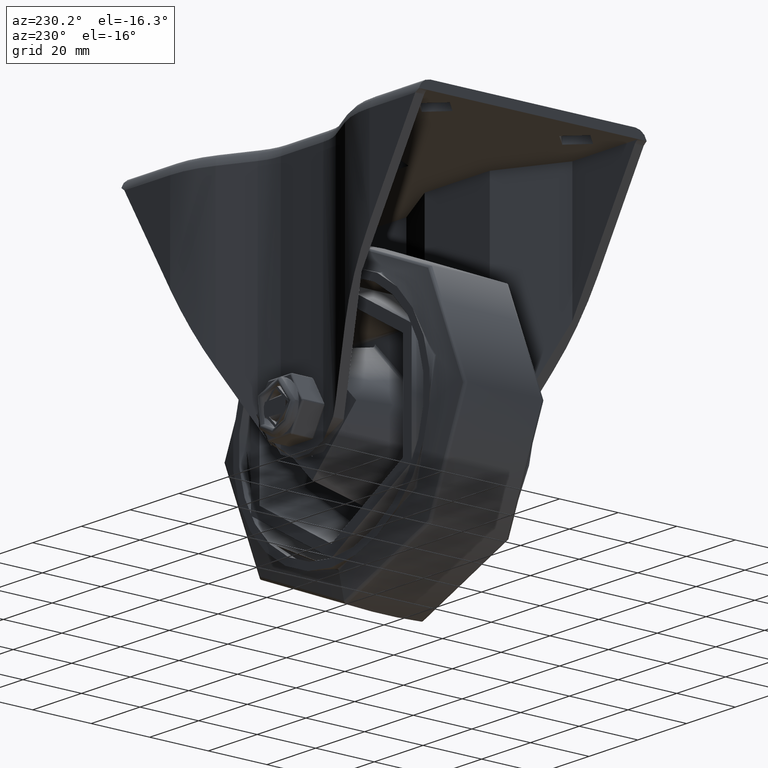
[diagram: clean part render]
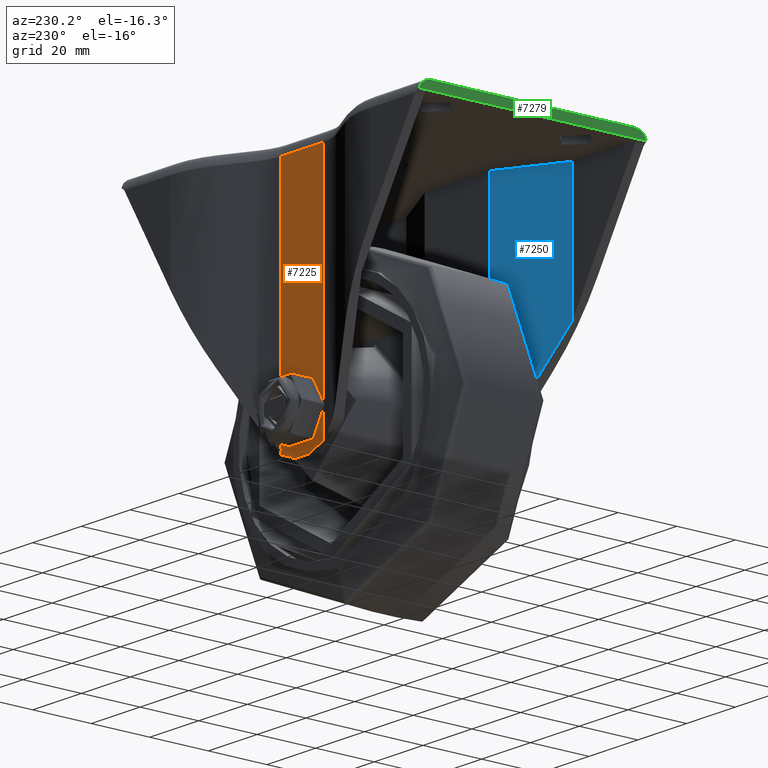
[diagram: same view with three faces highlighted in distinct colors, each labeled with its STEP entity id]
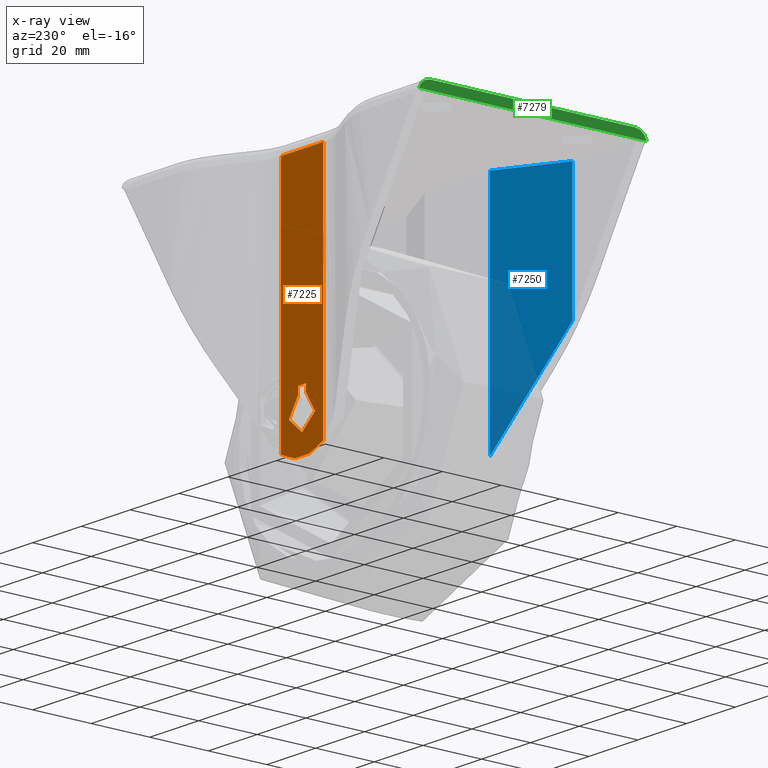
[diagram: x-ray of the same camera — body ghosted, the three highlighted faces saturated]
A machine part, auxiliary view with three faces highlighted in distinct colors.
The next image is the same camera in x-ray (body ghosted, the three faces saturated) — at least one of them is partly hidden behind the body in this view.
Their STEP definitions:

[orange] entity #7225 — the highlighted planar face has unit normal (0, -1, 0).
#697=FACE_BOUND('',#1472,.T.);
#742=CIRCLE('',#7757,5.4);
#750=CIRCLE('',#7776,16.);
#1037=FACE_OUTER_BOUND('',#1471,.T.);
#1471=EDGE_LOOP('',(#4924,#4925,#4926,#4927));
#1472=EDGE_LOOP('',(#4928,#4929,#4930,#4931));
#1927=LINE('',#10494,#2478);
#1931=LINE('',#10502,#2482);
#1934=LINE('',#10508,#2485);
#1966=LINE('',#10638,#2517);
#1967=LINE('',#10641,#2518);
#1968=LINE('',#10642,#2519);
#2478=VECTOR('',#8485,10.);
#2482=VECTOR('',#8491,10.);
#2485=VECTOR('',#8496,10.);
#2517=VECTOR('',#8602,10.);
#2518=VECTOR('',#8605,10.);
#2519=VECTOR('',#8606,10.);
#3029=VERTEX_POINT('',#10492);
#3030=VERTEX_POINT('',#10493);
#3033=VERTEX_POINT('',#10501);
#3035=VERTEX_POINT('',#10507);
#3062=VERTEX_POINT('',#10587);
#3063=VERTEX_POINT('',#10594);
#3072=VERTEX_POINT('',#10636);
#3073=VERTEX_POINT('',#10640);
#3722=EDGE_CURVE('',#3029,#3030,#1927,.T.);
#3726=EDGE_CURVE('',#3033,#3029,#1931,.T.);
#3729=EDGE_CURVE('',#3035,#3033,#1934,.T.);
#3737=EDGE_CURVE('',#3030,#3035,#742,.T.);
#3766=EDGE_CURVE('',#3063,#3062,#750,.T.);
#3784=EDGE_CURVE('',#3062,#3072,#1966,.T.);
#3785=EDGE_CURVE('',#3072,#3073,#1967,.T.);
#3786=EDGE_CURVE('',#3073,#3063,#1968,.T.);
#4924=ORIENTED_EDGE('',*,*,#3785,.T.);
#4925=ORIENTED_EDGE('',*,*,#3786,.T.);
#4926=ORIENTED_EDGE('',*,*,#3766,.T.);
#4927=ORIENTED_EDGE('',*,*,#3784,.T.);
#4928=ORIENTED_EDGE('',*,*,#3722,.T.);
#4929=ORIENTED_EDGE('',*,*,#3737,.T.);
#4930=ORIENTED_EDGE('',*,*,#3729,.T.);
#4931=ORIENTED_EDGE('',*,*,#3726,.T.);
#7053=PLANE('',#7790);
#7225=ADVANCED_FACE('',(#1037,#697),#7053,.F.);
#7757=AXIS2_PLACEMENT_3D('',#10523,#8510,#8511);
#7776=AXIS2_PLACEMENT_3D('',#10595,#8564,#8565);
#7790=AXIS2_PLACEMENT_3D('',#10639,#8603,#8604);
#8485=DIRECTION('',(0.,0.,-1.));
#8491=DIRECTION('',(-1.,0.,0.));
#8496=DIRECTION('',(0.,0.,1.));
#8510=DIRECTION('center_axis',(0.,-1.,0.));
#8511=DIRECTION('ref_axis',(0.,0.,1.));
#8564=DIRECTION('center_axis',(0.,1.,0.));
#8565=DIRECTION('ref_axis',(0.,0.,1.));
#8602=DIRECTION('',(0.,0.,1.));
#8603=DIRECTION('center_axis',(0.,-1.,0.));
#8604=DIRECTION('ref_axis',(0.,0.,-1.));
#8605=DIRECTION('',(1.,0.,0.));
#8606=DIRECTION('',(0.,0.,-1.));
#10492=CARTESIAN_POINT('',(479.443513280452,-22.1950614001456,-68.4));
#10493=CARTESIAN_POINT('',(479.443513280452,-22.1950614001456,-70.8424812167089));
#10494=CARTESIAN_POINT('',(479.443513280452,-22.1950614001456,-97.2));
#10501=CARTESIAN_POINT('',(482.643513280452,-22.1950614001456,-68.4));
#10502=CARTESIAN_POINT('',(481.843513280452,-22.1950614001456,-68.4));
#10507=CARTESIAN_POINT('',(482.643513280452,-22.1950614001456,-70.842481216709));
#10508=CARTESIAN_POINT('',(482.643513280452,-22.1950614001456,-99.7020727893988));
#10523=CARTESIAN_POINT('Origin',(481.043513280452,-22.1950614001456,-76.));
#10587=CARTESIAN_POINT('',(472.324032640299,-22.1950614001456,-85.6153142850253));
#10594=CARTESIAN_POINT('',(489.762993920606,-22.1950614001456,-85.6153142850245));
#10595=CARTESIAN_POINT('Origin',(481.043513280452,-22.1950614001456,-72.2));
#10636=CARTESIAN_POINT('',(472.324032640299,-22.1950614001456,-4.));
#10638=CARTESIAN_POINT('',(472.324032640299,-22.1950614001456,-126.));
#10639=CARTESIAN_POINT('Origin',(481.043513280452,-22.1950614001456,-126.));
#10640=CARTESIAN_POINT('',(489.762993920606,-22.1950614001456,-4.));
#10641=CARTESIAN_POINT('',(460.605233335578,-22.1950614001456,-4.));
#10642=CARTESIAN_POINT('',(489.762993920606,-22.1950614001456,-126.));

[blue] entity #7250 — the highlighted planar face has unit normal (0.4695, -0.8829, 0).
#506=ELLIPSE('',#7846,18.1211208110246,16.);
#1062=FACE_OUTER_BOUND('',#1497,.T.);
#1497=EDGE_LOOP('',(#5039,#5040,#5041,#5042,#5043));
#1986=LINE('',#10732,#2537);
#2001=LINE('',#10792,#2552);
#2002=LINE('',#10794,#2553);
#2003=LINE('',#10795,#2554);
#2537=VECTOR('',#8700,10.);
#2552=VECTOR('',#8751,1.);
#2553=VECTOR('',#8752,10.);
#2554=VECTOR('',#8753,10.);
#3098=VERTEX_POINT('',#10729);
#3099=VERTEX_POINT('',#10731);
#3117=VERTEX_POINT('',#10789);
#3118=VERTEX_POINT('',#10790);
#3119=VERTEX_POINT('',#10793);
#3826=EDGE_CURVE('',#3098,#3099,#1986,.T.);
#3851=EDGE_CURVE('',#3117,#3118,#506,.T.);
#3852=EDGE_CURVE('',#3118,#3099,#2001,.T.);
#3853=EDGE_CURVE('',#3098,#3119,#2002,.T.);
#3854=EDGE_CURVE('',#3119,#3117,#2003,.T.);
#5039=ORIENTED_EDGE('',*,*,#3851,.T.);
#5040=ORIENTED_EDGE('',*,*,#3852,.T.);
#5041=ORIENTED_EDGE('',*,*,#3826,.F.);
#5042=ORIENTED_EDGE('',*,*,#3853,.T.);
#5043=ORIENTED_EDGE('',*,*,#3854,.T.);
#7061=PLANE('',#7845);
#7250=ADVANCED_FACE('',(#1062),#7061,.F.);
#7845=AXIS2_PLACEMENT_3D('',#10788,#8747,#8748);
#7846=AXIS2_PLACEMENT_3D('',#10791,#8749,#8750);
#8700=DIRECTION('',(0.,0.,-1.));
#8747=DIRECTION('center_axis',(0.469471562785892,-0.882947592858926,0.));
#8748=DIRECTION('ref_axis',(0.,0.,-1.));
#8749=DIRECTION('center_axis',(-0.469471562785892,0.882947592858926,0.));
#8750=DIRECTION('ref_axis',(0.882947592858926,0.469471562785892,0.));
#8751=DIRECTION('',(-0.49639391397472,-0.263937325879716,0.827000707482359));
#8752=DIRECTION('',(0.882947592858926,0.469471562785892,0.));
#8753=DIRECTION('',(0.,0.,-1.));
#10729=CARTESIAN_POINT('',(447.02347346889,-86.1951092699324,-3.00000000000001));
#10731=CARTESIAN_POINT('',(447.02347346889,-86.1951092699324,-46.6115322145181));
#10732=CARTESIAN_POINT('',(447.02347346889,-86.1951092699324,-126.));
#10788=CARTESIAN_POINT('Origin',(460.347537414404,-79.1105788020422,-126.));
#10789=CARTESIAN_POINT('',(467.7114645877,-75.1951092699324,-81.0462691375569));
#10790=CARTESIAN_POINT('',(467.325042692487,-75.4005734362177,-80.4342919991425));
#10791=CARTESIAN_POINT('Origin',(481.043513280452,-68.1063332366261,-72.2));
#10792=CARTESIAN_POINT('',(483.825212482642,-66.6272775347764,-107.923855641803));
#10793=CARTESIAN_POINT('',(467.7114645877,-75.1951092699324,-3.00000000000001));
#10794=CARTESIAN_POINT('',(456.71247939086,-81.0433734377975,-3.00000000000001));
#10795=CARTESIAN_POINT('',(467.7114645877,-75.1951092699324,-126.));

[green] entity #7279 — the highlighted planar face has unit normal (-1, 0, 0).
#755=CIRCLE('',#7802,4.);
#793=CIRCLE('',#7885,4.);
#1091=FACE_OUTER_BOUND('',#1538,.T.);
#1538=EDGE_LOOP('',(#5216,#5217,#5218,#5219,#5220,#5221));
#1951=LINE('',#10573,#2502);
#1999=LINE('',#10786,#2550);
#2010=LINE('',#10836,#2561);
#2035=LINE('',#10939,#2586);
#2502=VECTOR('',#8549,1.);
#2550=VECTOR('',#8745,1.);
#2561=VECTOR('',#8778,1.);
#2586=VECTOR('',#8895,1.);
#3042=VERTEX_POINT('',#10526);
#3056=VERTEX_POINT('',#10562);
#3082=VERTEX_POINT('',#10679);
#3097=VERTEX_POINT('',#10727);
#3115=VERTEX_POINT('',#10776);
#3128=VERTEX_POINT('',#10835);
#3757=EDGE_CURVE('',#3042,#3056,#1951,.T.);
#3801=EDGE_CURVE('',#3082,#3056,#755,.T.);
#3849=EDGE_CURVE('',#3097,#3115,#1999,.T.);
#3868=EDGE_CURVE('',#3082,#3128,#2010,.T.);
#3909=EDGE_CURVE('',#3128,#3115,#793,.T.);
#3917=EDGE_CURVE('',#3097,#3042,#2035,.T.);
#5216=ORIENTED_EDGE('',*,*,#3917,.F.);
#5217=ORIENTED_EDGE('',*,*,#3849,.T.);
#5218=ORIENTED_EDGE('',*,*,#3909,.F.);
#5219=ORIENTED_EDGE('',*,*,#3868,.F.);
#5220=ORIENTED_EDGE('',*,*,#3801,.T.);
#5221=ORIENTED_EDGE('',*,*,#3757,.F.);
#7074=PLANE('',#7904);
#7279=ADVANCED_FACE('',(#1091),#7074,.T.);
#7802=AXIS2_PLACEMENT_3D('',#10680,#8638,#8639);
#7885=AXIS2_PLACEMENT_3D('',#10922,#8861,#8862);
#7904=AXIS2_PLACEMENT_3D('',#10942,#8900,#8901);
#8549=DIRECTION('',(0.,1.,0.));
#8638=DIRECTION('center_axis',(-1.,0.,0.));
#8639=DIRECTION('ref_axis',(0.,0.707106781186549,0.707106781186546));
#8745=DIRECTION('',(0.,-1.,0.));
#8778=DIRECTION('',(0.,-1.,0.));
#8861=DIRECTION('center_axis',(1.,0.,0.));
#8862=DIRECTION('ref_axis',(0.,-0.707106781186549,0.707106781186546));
#8895=DIRECTION('',(0.,1.,0.));
#8900=DIRECTION('center_axis',(-1.,0.,0.));
#8901=DIRECTION('ref_axis',(0.,0.,1.));
#10526=CARTESIAN_POINT('',(420.043513280453,-14.1950614001456,-3.00000000000001));
#10562=CARTESIAN_POINT('',(420.043513280452,-11.3220780539382,-3.));
#10573=CARTESIAN_POINT('',(420.043513280452,-50.1950614001457,-3.));
#10679=CARTESIAN_POINT('',(420.043513280452,-15.1950614001456,0.));
#10680=CARTESIAN_POINT('Origin',(420.043513280452,-15.1950614001456,-4.));
#10727=CARTESIAN_POINT('',(420.043513280453,-86.1951092699324,-3.00000000000001));
#10776=CARTESIAN_POINT('',(420.043513280452,-89.0680926161398,-3.));
#10786=CARTESIAN_POINT('',(420.043513280452,-50.1951092699323,-3.));
#10835=CARTESIAN_POINT('',(420.043513280452,-85.1951092699324,0.));
#10836=CARTESIAN_POINT('',(420.043513280452,-50.1951092699323,0.));
#10922=CARTESIAN_POINT('Origin',(420.043513280452,-85.1951092699324,-4.));
#10939=CARTESIAN_POINT('',(420.043513280452,-50.1950614001457,-3.));
#10942=CARTESIAN_POINT('Origin',(420.043513280452,-50.1951092699323,0.));